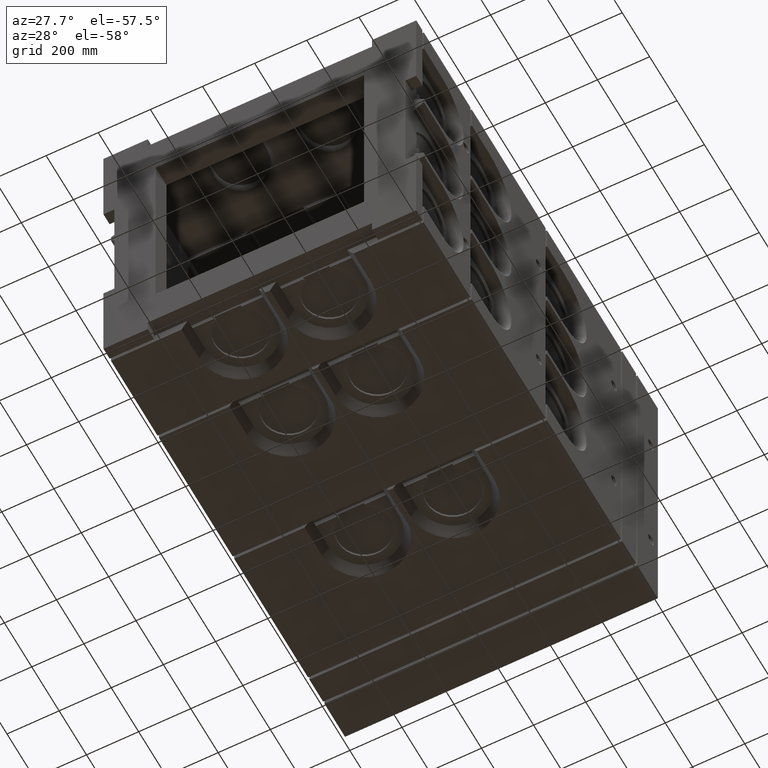
[diagram: clean part render]
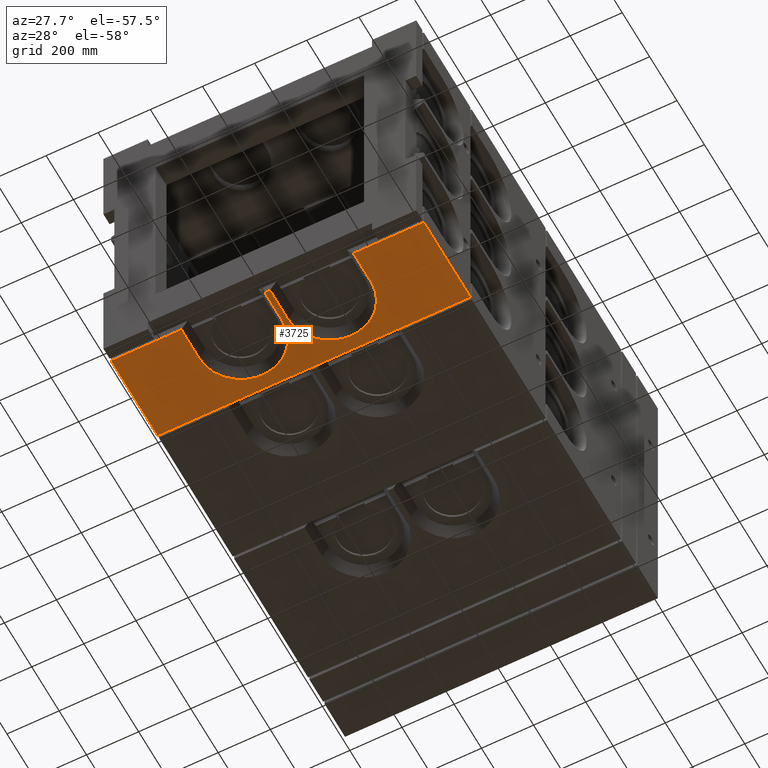
[diagram: same view with one face highlighted and labeled with its STEP entity id]
A machine part, auxiliary view. The second image highlights one B-rep face of the part: STEP entity #3725.
In plain terms, the highlighted planar face has unit normal (0, 0, 1).
Its self-contained STEP definition (entity closure, byte-faithful):
#279 = VERTEX_POINT ( 'NONE', #38514 ) ;
#443 = ORIENTED_EDGE ( 'NONE', *, *, #23248, .T. ) ;
#1119 = CARTESIAN_POINT ( 'NONE',  ( 600.0000000000000000, 54.99999999999999289, -600.0000000000001137 ) ) ;
#2001 = LINE ( 'NONE', #33753, #2573 ) ;
#2573 = VECTOR ( 'NONE', #44218, 1000.000000000000000 ) ;
#2894 = DIRECTION ( 'NONE',  ( 4.440892098500625176E-16, 1.000000000000000000, 0.0000000000000000000 ) ) ;
#3434 = CARTESIAN_POINT ( 'NONE',  ( -10.00000000000000888, 54.99999999999999289, -600.0000000000001137 ) ) ;
#3725 = ADVANCED_FACE ( 'NONE', ( #30285 ), #9940, .F. ) ;
#3916 = ORIENTED_EDGE ( 'NONE', *, *, #5774, .T. ) ;
#5074 = CARTESIAN_POINT ( 'NONE',  ( -600.0000000000001137, 394.9999999999999432, -600.0000000000001137 ) ) ;
#5416 = LINE ( 'NONE', #45868, #28225 ) ;
#5448 = LINE ( 'NONE', #41763, #38772 ) ;
#5587 = CARTESIAN_POINT ( 'NONE',  ( 169.9999999999999716, 185.0000000000000000, -600.0000000000001137 ) ) ;
#5774 = EDGE_CURVE ( 'NONE', #37582, #39621, #38452, .T. ) ;
#7913 = DIRECTION ( 'NONE',  ( -0.0000000000000000000, -1.000000000000000000, 0.0000000000000000000 ) ) ;
#9940 = PLANE ( 'NONE',  #32785 ) ;
#10476 = ORIENTED_EDGE ( 'NONE', *, *, #28561, .T. ) ;
#10795 = CARTESIAN_POINT ( 'NONE',  ( 329.9999999999999432, 185.0000000000000284, -600.0000000000001137 ) ) ;
#10866 = CARTESIAN_POINT ( 'NONE',  ( -600.0000000000001137, 430.0000000000000000, -600.0000000000001137 ) ) ;
#11280 = VECTOR ( 'NONE', #27685, 1000.000000000000000 ) ;
#12157 = DIRECTION ( 'NONE',  ( 1.000000000000000000, 0.0000000000000000000, 0.0000000000000000000 ) ) ;
#12959 = ORIENTED_EDGE ( 'NONE', *, *, #17242, .T. ) ;
#13010 = ORIENTED_EDGE ( 'NONE', *, *, #23003, .T. ) ;
#13678 = CARTESIAN_POINT ( 'NONE',  ( -600.0000000000001137, 54.99999999999999289, -600.0000000000001137 ) ) ;
#13686 = DIRECTION ( 'NONE',  ( -2.220446049250313081E-16, 1.000000000000000000, 0.0000000000000000000 ) ) ;
#14048 = ORIENTED_EDGE ( 'NONE', *, *, #38285, .F. ) ;
#14621 = CARTESIAN_POINT ( 'NONE',  ( -9.999999999999896971, 185.0000000000000284, -600.0000000000001137 ) ) ;
#14969 = AXIS2_PLACEMENT_3D ( 'NONE', #43456, #18251, #18557 ) ;
#16780 = CARTESIAN_POINT ( 'NONE',  ( 9.999999999999896971, 185.0000000000000000, -600.0000000000001137 ) ) ;
#16789 = ORIENTED_EDGE ( 'NONE', *, *, #42501, .T. ) ;
#17242 = EDGE_CURVE ( 'NONE', #279, #18185, #21829, .T. ) ;
#17645 = CARTESIAN_POINT ( 'NONE',  ( 600.0000000000000000, 54.99999999999999289, -600.0000000000001137 ) ) ;
#18185 = VERTEX_POINT ( 'NONE', #29729 ) ;
#18251 = DIRECTION ( 'NONE',  ( -0.0000000000000000000, -0.0000000000000000000, 1.000000000000000000 ) ) ;
#18557 = DIRECTION ( 'NONE',  ( 1.000000000000000000, 0.0000000000000000000, 0.0000000000000000000 ) ) ;
#19549 = LINE ( 'NONE', #44401, #39552 ) ;
#20474 = DIRECTION ( 'NONE',  ( 1.000000000000000000, 0.0000000000000000000, 0.0000000000000000000 ) ) ;
#20530 = CARTESIAN_POINT ( 'NONE',  ( -329.9999999999999432, 184.9999999999999716, -600.0000000000001137 ) ) ;
#20642 = CIRCLE ( 'NONE', #14969, 160.0000000000000284 ) ;
#21829 = LINE ( 'NONE', #20530, #11280 ) ;
#22086 = LINE ( 'NONE', #10866, #40952 ) ;
#22514 = EDGE_CURVE ( 'NONE', #25351, #37496, #27167, .T. ) ;
#22704 = DIRECTION ( 'NONE',  ( -0.0000000000000000000, -0.0000000000000000000, 1.000000000000000000 ) ) ;
#23003 = EDGE_CURVE ( 'NONE', #37496, #25230, #5448, .T. ) ;
#23248 = EDGE_CURVE ( 'NONE', #18185, #43476, #33769, .T. ) ;
#24923 = DIRECTION ( 'NONE',  ( -1.000000000000000000, 0.0000000000000000000, 0.0000000000000000000 ) ) ;
#25142 = ORIENTED_EDGE ( 'NONE', *, *, #35824, .T. ) ;
#25230 = VERTEX_POINT ( 'NONE', #10795 ) ;
#25332 = EDGE_CURVE ( 'NONE', #37980, #279, #20642, .T. ) ;
#25351 = VERTEX_POINT ( 'NONE', #1119 ) ;
#25847 = CARTESIAN_POINT ( 'NONE',  ( 9.999999999999953815, 54.99999999999999289, -600.0000000000001137 ) ) ;
#26129 = AXIS2_PLACEMENT_3D ( 'NONE', #5587, #22704, #12157 ) ;
#26970 = EDGE_CURVE ( 'NONE', #29977, #37582, #2001, .T. ) ;
#27167 = LINE ( 'NONE', #17645, #44849 ) ;
#27174 = CARTESIAN_POINT ( 'NONE',  ( 600.0000000000000000, 394.9999999999999432, -600.0000000000001137 ) ) ;
#27685 = DIRECTION ( 'NONE',  ( 0.0000000000000000000, -1.000000000000000000, 0.0000000000000000000 ) ) ;
#28225 = VECTOR ( 'NONE', #2894, 1000.000000000000000 ) ;
#28561 = EDGE_CURVE ( 'NONE', #44786, #25351, #19549, .T. ) ;
#28950 = CARTESIAN_POINT ( 'NONE',  ( 329.9999999999999432, 54.99999999999999289, -600.0000000000001137 ) ) ;
#29729 = CARTESIAN_POINT ( 'NONE',  ( -329.9999999999999432, 54.99999999999999289, -600.0000000000001137 ) ) ;
#29977 = VERTEX_POINT ( 'NONE', #16780 ) ;
#30285 = FACE_OUTER_BOUND ( 'NONE', #44528, .T. ) ;
#30369 = VECTOR ( 'NONE', #34479, 1000.000000000000000 ) ;
#30540 = DIRECTION ( 'NONE',  ( -1.000000000000000000, 0.0000000000000000000, 0.0000000000000000000 ) ) ;
#30705 = CIRCLE ( 'NONE', #26129, 160.0000000000000284 ) ;
#30710 = CARTESIAN_POINT ( 'NONE',  ( 600.0000000000000000, 430.0000000000000000, -600.0000000000001137 ) ) ;
#30879 = CARTESIAN_POINT ( 'NONE',  ( 600.0000000000000000, 394.9999999999999432, -600.0000000000001137 ) ) ;
#32785 = AXIS2_PLACEMENT_3D ( 'NONE', #30710, #34635, #20474 ) ;
#32794 = CARTESIAN_POINT ( 'NONE',  ( 600.0000000000000000, 54.99999999999999289, -600.0000000000001137 ) ) ;
#32919 = VECTOR ( 'NONE', #30540, 1000.000000000000000 ) ;
#33249 = DIRECTION ( 'NONE',  ( -1.000000000000000000, 0.0000000000000000000, 0.0000000000000000000 ) ) ;
#33753 = CARTESIAN_POINT ( 'NONE',  ( 10.00000000000000888, -65.00000000000001421, -600.0000000000001137 ) ) ;
#33769 = LINE ( 'NONE', #32794, #45891 ) ;
#34479 = DIRECTION ( 'NONE',  ( -1.000000000000000000, 0.0000000000000000000, 0.0000000000000000000 ) ) ;
#34494 = ORIENTED_EDGE ( 'NONE', *, *, #26970, .T. ) ;
#34635 = DIRECTION ( 'NONE',  ( 0.0000000000000000000, 0.0000000000000000000, 1.000000000000000000 ) ) ;
#35824 = EDGE_CURVE ( 'NONE', #25230, #29977, #30705, .T. ) ;
#36334 = ORIENTED_EDGE ( 'NONE', *, *, #22514, .T. ) ;
#37496 = VERTEX_POINT ( 'NONE', #28950 ) ;
#37582 = VERTEX_POINT ( 'NONE', #25847 ) ;
#37980 = VERTEX_POINT ( 'NONE', #14621 ) ;
#37988 = CARTESIAN_POINT ( 'NONE',  ( 600.0000000000000000, 54.99999999999999289, -600.0000000000001137 ) ) ;
#38285 = EDGE_CURVE ( 'NONE', #44786, #45543, #43652, .T. ) ;
#38452 = LINE ( 'NONE', #37988, #32919 ) ;
#38514 = CARTESIAN_POINT ( 'NONE',  ( -329.9999999999999432, 184.9999999999999716, -600.0000000000001137 ) ) ;
#38772 = VECTOR ( 'NONE', #13686, 1000.000000000000000 ) ;
#39552 = VECTOR ( 'NONE', #41341, 1000.000000000000000 ) ;
#39621 = VERTEX_POINT ( 'NONE', #3434 ) ;
#40143 = ORIENTED_EDGE ( 'NONE', *, *, #42642, .F. ) ;
#40952 = VECTOR ( 'NONE', #7913, 1000.000000000000000 ) ;
#41341 = DIRECTION ( 'NONE',  ( -0.0000000000000000000, -1.000000000000000000, 0.0000000000000000000 ) ) ;
#41763 = CARTESIAN_POINT ( 'NONE',  ( 329.9999999999999432, 185.0000000000000284, -600.0000000000001137 ) ) ;
#42501 = EDGE_CURVE ( 'NONE', #39621, #37980, #5416, .T. ) ;
#42642 = EDGE_CURVE ( 'NONE', #45543, #43476, #22086, .T. ) ;
#43456 = CARTESIAN_POINT ( 'NONE',  ( -169.9999999999999432, 185.0000000000000000, -600.0000000000001137 ) ) ;
#43476 = VERTEX_POINT ( 'NONE', #13678 ) ;
#43652 = LINE ( 'NONE', #30879, #30369 ) ;
#44218 = DIRECTION ( 'NONE',  ( 4.440892098500626162E-16, -1.000000000000000000, 0.0000000000000000000 ) ) ;
#44401 = CARTESIAN_POINT ( 'NONE',  ( 600.0000000000000000, 430.0000000000000000, -600.0000000000001137 ) ) ;
#44528 = EDGE_LOOP ( 'NONE', ( #16789, #45331, #12959, #443, #40143, #14048, #10476, #36334, #13010, #25142, #34494, #3916 ) ) ;
#44786 = VERTEX_POINT ( 'NONE', #27174 ) ;
#44849 = VECTOR ( 'NONE', #24923, 1000.000000000000000 ) ;
#45331 = ORIENTED_EDGE ( 'NONE', *, *, #25332, .T. ) ;
#45543 = VERTEX_POINT ( 'NONE', #5074 ) ;
#45868 = CARTESIAN_POINT ( 'NONE',  ( -9.999999999999896971, 185.0000000000000284, -600.0000000000001137 ) ) ;
#45891 = VECTOR ( 'NONE', #33249, 1000.000000000000000 ) ;